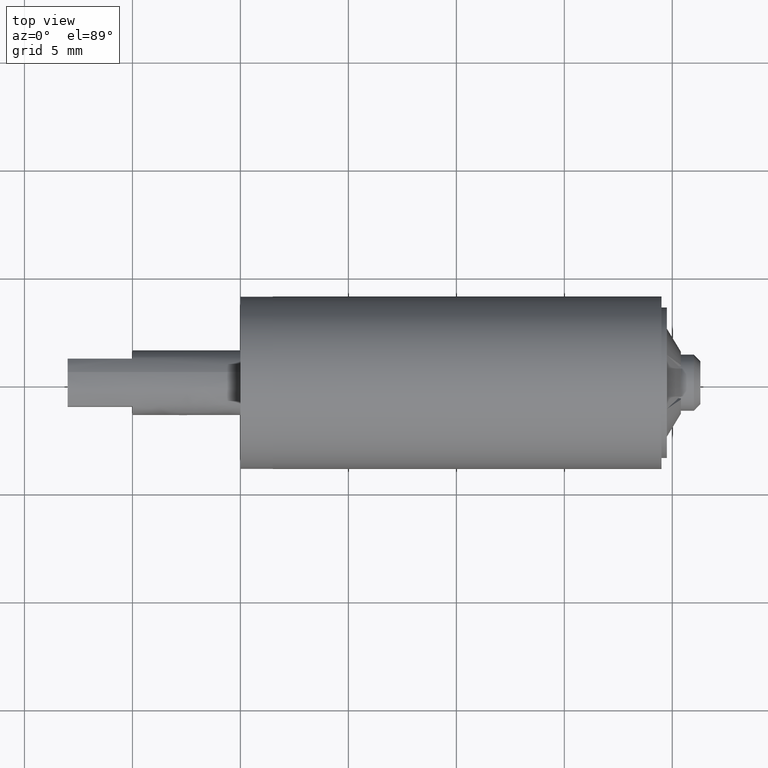
[diagram: clean part render]
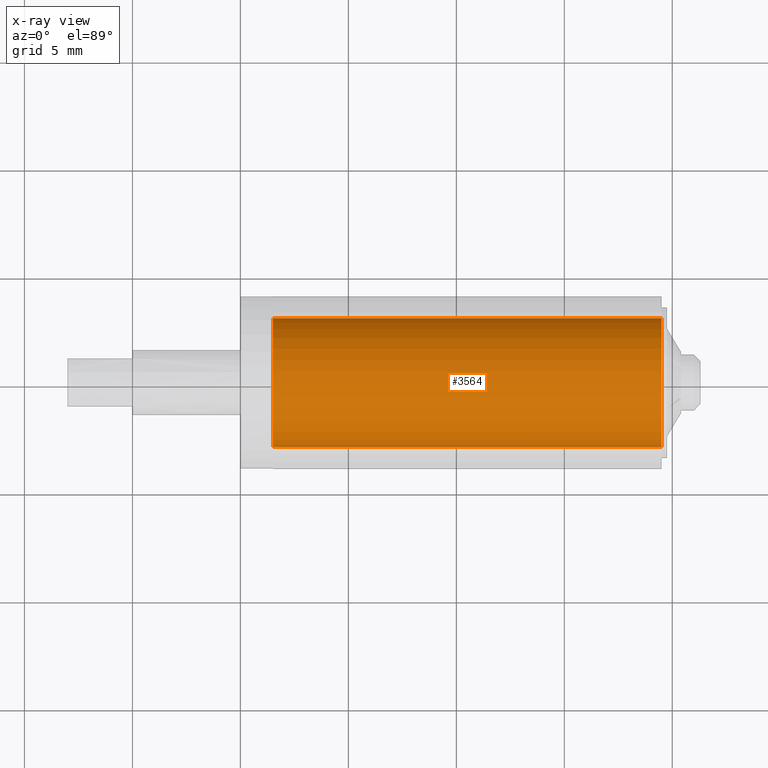
[diagram: x-ray — body ghosted, one internal face saturated and labeled with its STEP entity id]
A machine part, top view, then the same camera in x-ray: the body is ghosted and one INTERNAL B-rep face — a face not visible from any outside direction — is saturated and labeled: STEP entity #3564.
In plain terms, the highlighted face is a freeform B-spline surface patch.
Its self-contained STEP definition (entity closure, byte-faithful):
#3466=CARTESIAN_POINT('',(-24.949999999999999,-2.990752001199383,-0.235377287183537));
#3467=CARTESIAN_POINT('',(-24.949999999999996,-2.755374714015846,-3.226129288382921));
#3468=CARTESIAN_POINT('',(-24.949999999999999,0.235377287183537,-2.990752001199383));
#3469=CARTESIAN_POINT('',(-24.949999999999996,3.226129288382921,-2.755374714015846));
#3470=CARTESIAN_POINT('',(-24.949999999999999,2.990752001199383,0.235377287183537));
#3471=CARTESIAN_POINT('',(-6.038750000000000,-2.990752001199383,-0.235377287183537));
#3472=CARTESIAN_POINT('',(-6.038750000000000,-2.755374714015846,-3.226129288382921));
#3473=CARTESIAN_POINT('',(-6.038750000000000,0.235377287183537,-2.990752001199383));
#3474=CARTESIAN_POINT('',(-6.038750000000000,3.226129288382921,-2.755374714015846));
#3475=CARTESIAN_POINT('',(-6.038750000000000,2.990752001199383,0.235377287183537));
#3483=(BOUNDED_SURFACE()B_SPLINE_SURFACE(2,1,((#3466,#3471),(#3467,#3472),(#3468,#3473),(#3469,#3474),(#3470,#3475)),.UNSPECIFIED.,.F.,.F.,.U.)B_SPLINE_SURFACE_WITH_KNOTS((3,2,3),(2,2),(0.0,4.970562748477140,9.941125496954280),(0.0,18.911250000000010),.UNSPECIFIED.)GEOMETRIC_REPRESENTATION_ITEM()RATIONAL_B_SPLINE_SURFACE(((1.0,1.0),(0.707106781186548,0.707106781186548),(1.0,1.0),(0.707106781186548,0.707106781186548),(1.0,1.0)))REPRESENTATION_ITEM('')SURFACE());
#3484=CARTESIAN_POINT('',(-24.500000000000000,0.0,-3.0));
#3485=VERTEX_POINT('',#3484);
#3486=CARTESIAN_POINT('',(-24.499999999999989,-2.990752252053484,-0.235374099736553));
#3487=VERTEX_POINT('',#3486);
#3488=CARTESIAN_POINT('',(-24.500000000000000,0.0,-3.0));
#3489=CARTESIAN_POINT('',(-24.500000000000007,-2.773174439671678,-3.0));
#3490=CARTESIAN_POINT('',(-24.499999999999989,-2.990752252053484,-0.235374099736553));
#3498=(BOUNDED_CURVE()B_SPLINE_CURVE(2,(#3488,#3489,#3490),.UNSPECIFIED.,.F.,.U.)B_SPLINE_CURVE_WITH_KNOTS((3,3),(0.0,0.236331483331478),.UNSPECIFIED.)CURVE()GEOMETRIC_REPRESENTATION_ITEM()RATIONAL_B_SPLINE_CURVE((1.0,0.723120444560343,0.969723737450400))REPRESENTATION_ITEM(''));
#3499=EDGE_CURVE('',#3485,#3487,#3498,.T.);
#3500=ORIENTED_EDGE('',*,*,#3499,.T.);
#3501=CARTESIAN_POINT('',(-6.499999999999999,-2.990752249036120,-0.235374138076830));
#3502=VERTEX_POINT('',#3501);
#3503=CARTESIAN_POINT('',(-24.499999999999989,-2.990752252053484,-0.235374099736553));
#3504=CARTESIAN_POINT('',(-6.499999999999999,-2.990752249036120,-0.235374138076830));
#3505=QUASI_UNIFORM_CURVE('',1,(#3503,#3504),.UNSPECIFIED.,.F.,.U.);
#3506=EDGE_CURVE('',#3487,#3502,#3505,.T.);
#3507=ORIENTED_EDGE('',*,*,#3506,.T.);
#3508=CARTESIAN_POINT('',(-6.500000000000000,0.0,-3.0));
#3509=VERTEX_POINT('',#3508);
#3510=CARTESIAN_POINT('',(-6.500000000000000,0.0,-3.0));
#3511=CARTESIAN_POINT('',(-6.500000000000000,-2.773174404010740,-3.000000000000000));
#3512=CARTESIAN_POINT('',(-6.499999999999999,-2.990752249036120,-0.235374138076830));
#3520=(BOUNDED_CURVE()B_SPLINE_CURVE(2,(#3510,#3511,#3512),.UNSPECIFIED.,.F.,.U.)B_SPLINE_CURVE_WITH_KNOTS((3,3),(0.0,0.236331481133882),.UNSPECIFIED.)CURVE()GEOMETRIC_REPRESENTATION_ITEM()RATIONAL_B_SPLINE_CURVE((1.0,0.723120447134986,0.969723732864178))REPRESENTATION_ITEM(''));
#3521=EDGE_CURVE('',#3509,#3502,#3520,.T.);
#3522=ORIENTED_EDGE('',*,*,#3521,.F.);
#3523=CARTESIAN_POINT('',(-6.500000000000003,2.990752249036120,0.235374138076830));
#3524=VERTEX_POINT('',#3523);
#3525=CARTESIAN_POINT('',(-6.500000000000003,2.990752249036120,0.235374138076830));
#3526=CARTESIAN_POINT('',(-6.500000000000000,3.0,0.117868739162815));
#3527=CARTESIAN_POINT('',(-6.500000000000000,3.0,0.0));
#3528=CARTESIAN_POINT('',(-6.500000000000001,3.0,-3.0));
#3529=CARTESIAN_POINT('',(-6.500000000000000,0.0,-3.0));
#3537=(BOUNDED_CURVE()B_SPLINE_CURVE(2,(#3525,#3526,#3527,#3528,#3529),.UNSPECIFIED.,.F.,.U.)B_SPLINE_CURVE_WITH_KNOTS((3,2,3),(0.736331481133882,0.750000000000000,1.0),.UNSPECIFIED.)CURVE()GEOMETRIC_REPRESENTATION_ITEM()RATIONAL_B_SPLINE_CURVE((0.969723732864178,0.983986334051561,1.0,0.707106781186548,1.0))REPRESENTATION_ITEM(''));
#3538=EDGE_CURVE('',#3524,#3509,#3537,.T.);
#3539=ORIENTED_EDGE('',*,*,#3538,.F.);
#3540=CARTESIAN_POINT('',(-24.499999999999989,2.990752252053483,0.235374099736553));
#3541=VERTEX_POINT('',#3540);
#3542=CARTESIAN_POINT('',(-24.499999999999989,2.990752252053483,0.235374099736553));
#3543=CARTESIAN_POINT('',(-6.500000000000003,2.990752249036120,0.235374138076830));
#3544=QUASI_UNIFORM_CURVE('',1,(#3542,#3543),.UNSPECIFIED.,.F.,.U.);
#3545=EDGE_CURVE('',#3541,#3524,#3544,.T.);
#3546=ORIENTED_EDGE('',*,*,#3545,.F.);
#3547=CARTESIAN_POINT('',(-24.499999999999989,2.990752252053484,0.235374099736553));
#3548=CARTESIAN_POINT('',(-24.500000000000000,3.0,0.117868719903718));
#3549=CARTESIAN_POINT('',(-24.500000000000000,3.0,0.0));
#3550=CARTESIAN_POINT('',(-24.500000000000004,3.0,-3.0));
#3551=CARTESIAN_POINT('',(-24.500000000000000,0.0,-3.0));
#3559=(BOUNDED_CURVE()B_SPLINE_CURVE(2,(#3547,#3548,#3549,#3550,#3551),.UNSPECIFIED.,.F.,.U.)B_SPLINE_CURVE_WITH_KNOTS((3,2,3),(0.736331483331478,0.750000000000000,1.0),.UNSPECIFIED.)CURVE()GEOMETRIC_REPRESENTATION_ITEM()RATIONAL_B_SPLINE_CURVE((0.969723737450400,0.983986336626205,1.0,0.707106781186548,1.0))REPRESENTATION_ITEM(''));
#3560=EDGE_CURVE('',#3541,#3485,#3559,.T.);
#3561=ORIENTED_EDGE('',*,*,#3560,.T.);
#3562=EDGE_LOOP('',(#3500,#3507,#3522,#3539,#3546,#3561));
#3563=FACE_OUTER_BOUND('',#3562,.T.);
#3564=ADVANCED_FACE('',(#3563),#3483,.F.);